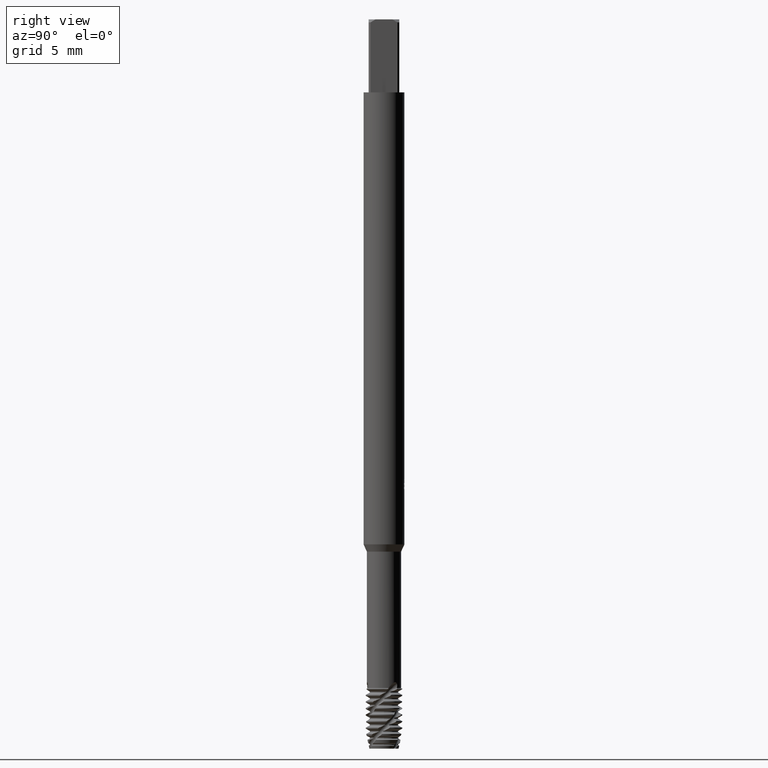
[diagram: clean part render]
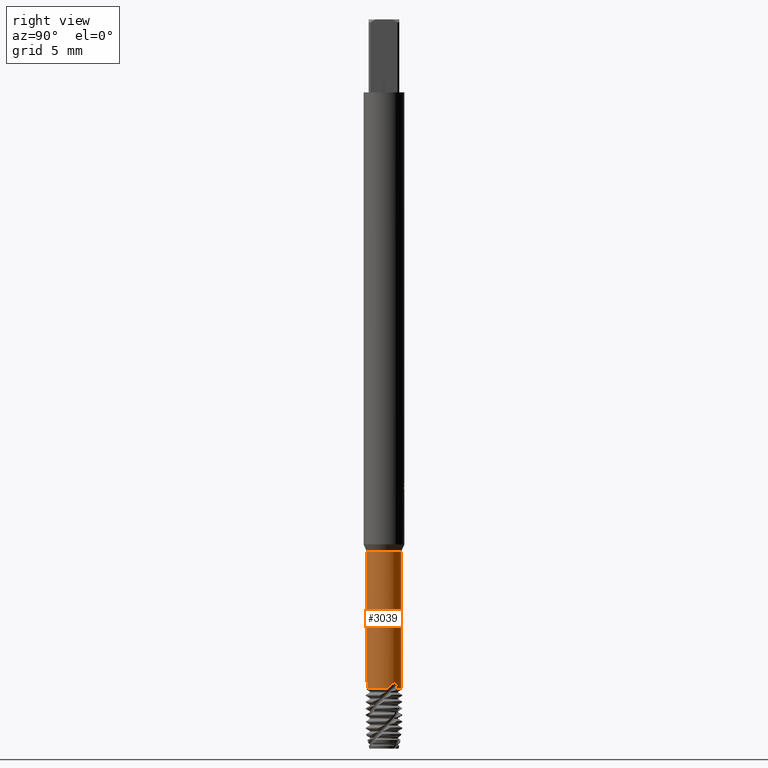
[diagram: same view with one face highlighted and labeled with its STEP entity id]
A machine part, right view. The second image highlights one B-rep face of the part: STEP entity #3039.
In plain terms, the highlighted cylindrical surface (edge-blend (fillet) strip) has radius 1.175 mm, axis along (-0, -0, 1).
Its self-contained STEP definition (entity closure, byte-faithful):
#1549=VERTEX_POINT('',#4412);
#1625=EDGE_CURVE('',#3463,#1673,#4492,.T.);
#1659=EDGE_CURVE('',#2507,#2755,#4531,.T.);
#1673=VERTEX_POINT('',#4545);
#1771=EDGE_CURVE('',#1673,#1549,#4649,.T.);
#1783=EDGE_CURVE('',#2327,#2001,#4663,.T.);
#1945=EDGE_CURVE('',#2507,#2391,#4840,.T.);
#2001=VERTEX_POINT('',#4901);
#2327=VERTEX_POINT('',#5258);
#2391=VERTEX_POINT('',#5329);
#2507=VERTEX_POINT('',#5457);
#2601=EDGE_CURVE('',#2001,#3919,#5557,.T.);
#2755=VERTEX_POINT('',#5720);
#3039=ADVANCED_FACE('',(#6026),#6027,.T.);
#3111=EDGE_CURVE('',#1549,#3919,#6106,.T.);
#3463=VERTEX_POINT('',#6492);
#3731=EDGE_CURVE('',#3463,#2391,#6780,.T.);
#3747=EDGE_CURVE('',#2327,#2755,#6797,.T.);
#3919=VERTEX_POINT('',#6981);
#4412=CARTESIAN_POINT('',(1.047353587431,0.532611925228308,-45.5898162549325));
#4492=B_SPLINE_CURVE_WITH_KNOTS('',3,(#8360,#8361,#8362,#8363),.UNSPECIFIED.,.F.,.F.,(4,4),(0.0,0.120829180290299),.UNSPECIFIED.);
#4531=LINE('',#8465,#8466);
#4545=CARTESIAN_POINT('',(1.11451813874406,0.372121375911766,-45.7623874233645));
#4649=B_SPLINE_CURVE_WITH_KNOTS('',3,(#8951,#8952,#8953,#8954,#8955,#8956,#8957,#8958,#8959,#8960,#8961,#8962,#8963,#8964),.UNSPECIFIED.,.F.,.F.,(4,2,2,2,2,2,4),(0.0,0.073062417340077,0.108764522273171,0.135861946286986,0.16442480648226,0.208150389188533,0.245366890157164),.UNSPECIFIED.);
#4663=LINE('',#8987,#8988);
#4840=B_SPLINE_CURVE_WITH_KNOTS('',3,(#9363,#9364,#9365,#9366,#9367,#9368,#9369,#9370,#9371,#9372,#9373,#9374,#9375,#9376,#9377,#9378,#9379,#9380,#9381,#9382,#9383,#9384),.UNSPECIFIED.,.F.,.F.,(4,2,2,2,2,2,2,2,2,2,4),(0.0,0.0841817871272147,0.156980846909316,0.240447389108906,0.348248711493823,0.444682957240608,0.535374247849396,0.636901902684092,0.762667788423749,0.891661716106928,1.02678632898102),.UNSPECIFIED.);
#4901=CARTESIAN_POINT('',(-1.43891246574129E-016,1.175,-45.8566987298108));
#5258=CARTESIAN_POINT('',(0.0,1.175,-36.49421268));
#5329=CARTESIAN_POINT('',(0.359354003040469,-1.11870000469241,-45.8566987298108));
#5457=CARTESIAN_POINT('',(-1.20216587817484E-009,-1.175,-45.539205110044));
#5557=CIRCLE('',#11818,1.175);
#5720=CARTESIAN_POINT('',(1.43891246574129E-016,-1.175,-36.49421268));
#6026=FACE_OUTER_BOUND('',#13232,.T.);
#6027=CYLINDRICAL_SURFACE('',#13233,1.175);
#6106=B_SPLINE_CURVE_WITH_KNOTS('',3,(#13428,#13429,#13430,#13431,#13432,#13433,#13434,#13435,#13436,#13437,#13438,#13439,#13440,#13441,#13442,#13443,#13444,#13445,#13446,#13447,#13448,#13449),.UNSPECIFIED.,.F.,.F.,(4,2,2,2,2,2,2,2,2,2,4),(0.0,0.0841817871270095,0.156980846908901,0.240447389108452,0.348248711482492,0.444682957208354,0.535374247797508,0.636901902610202,0.762667788322723,0.891661715978036,1.02678632882287),.UNSPECIFIED.);
#6492=CARTESIAN_POINT('',(1.13625974565498,0.299230330020322,-45.8566987298108));
#6780=CIRCLE('',#15966,1.175);
#6797=CIRCLE('',#16009,1.175);
#6981=CARTESIAN_POINT('',(0.78914562175716,0.87055969793088,-45.8566987298108));
#8360=CARTESIAN_POINT('',(1.13625974565498,0.299230330020324,-45.8566987298108));
#8361=CARTESIAN_POINT('',(1.13032123492983,0.32178048623501,-45.8238595396137));
#8362=CARTESIAN_POINT('',(1.12300399622722,0.346705899403337,-45.7924279401098));
#8363=CARTESIAN_POINT('',(1.11451813874406,0.372121375911767,-45.7623874233645));
#8465=CARTESIAN_POINT('',(1.43891246574129E-016,-1.175,-41.1754557049054));
#8466=VECTOR('',#18360,1.0);
#8951=CARTESIAN_POINT('',(1.11451813874407,0.372121375911765,-45.7623874233645));
#8952=CARTESIAN_POINT('',(1.10938410297114,0.387498014729864,-45.7442125850628));
#8953=CARTESIAN_POINT('',(1.10385042642776,0.403017060908933,-45.7263291878754));
#8954=CARTESIAN_POINT('',(1.0949174167896,0.4264370392599,-45.7001187223373));
#8955=CARTESIAN_POINT('',(1.09187900155634,0.434160781540667,-45.691597222726));
#8956=CARTESIAN_POINT('',(1.08633049950597,0.447829839298605,-45.6767356492354));
#8957=CARTESIAN_POINT('',(1.08387240070184,0.453748085420603,-45.6703724263763));
#8958=CARTESIAN_POINT('',(1.07868266434404,0.465956058650517,-45.6573919807135));
#8959=CARTESIAN_POINT('',(1.07594663451269,0.47224101854452,-45.6507876627665));
#8960=CARTESIAN_POINT('',(1.06882468761794,0.488211702407481,-45.6341981767681));
#8961=CARTESIAN_POINT('',(1.06434426225429,0.497908746975725,-45.6243033239712));
#8962=CARTESIAN_POINT('',(1.05569963799301,0.515953398455306,-45.6061934766522));
#8963=CARTESIAN_POINT('',(1.05159534158725,0.524270736790517,-45.5979639127367));
#8964=CARTESIAN_POINT('',(1.047353587431,0.532611925228309,-45.5898162549325));
#8987=CARTESIAN_POINT('',(-1.43891246574129E-016,1.175,-41.1754557049054));
#8988=VECTOR('',#18467,1.0);
#9363=CARTESIAN_POINT('',(-0.0624213361092398,-1.17334077607417,-45.5898162549325));
#9364=CARTESIAN_POINT('',(-0.0412882625215394,-1.1744650485075,-45.5713900170153));
#9365=CARTESIAN_POINT('',(-0.019171134966112,-1.17506204999753,-45.5532689430655));
#9366=CARTESIAN_POINT('',(0.0230796701197636,-1.17493669663887,-45.5222414992643));
#9367=CARTESIAN_POINT('',(0.043556298781691,-1.17438333532977,-45.5086073246523));
#9368=CARTESIAN_POINT('',(0.0889396182934026,-1.17188060109015,-45.4829202607176));
#9369=CARTESIAN_POINT('',(0.114520339778763,-1.16970964446998,-45.4711255898574));
#9370=CARTESIAN_POINT('',(0.175163413476366,-1.16238034571493,-45.4525400276971));
#9371=CARTESIAN_POINT('',(0.205216788232979,-1.15724589331639,-45.4499229865993));
#9372=CARTESIAN_POINT('',(0.254606036011483,-1.14733016986861,-45.4543946715206));
#9373=CARTESIAN_POINT('',(0.276884980590132,-1.14210814729991,-45.4606983043219));
#9374=CARTESIAN_POINT('',(0.316765437939759,-1.1316730165745,-45.4816701549037));
#9375=CARTESIAN_POINT('',(0.333753880191169,-1.12670315841001,-45.4954006828259));
#9376=CARTESIAN_POINT('',(0.364230488834712,-1.11724894816653,-45.5306140335427));
#9377=CARTESIAN_POINT('',(0.376587952902308,-1.11305644562499,-45.552260466532));
#9378=CARTESIAN_POINT('',(0.396442449943476,-1.10616166434668,-45.604502264913));
#9379=CARTESIAN_POINT('',(0.40192139869954,-1.10412196031456,-45.635501079484));
#9380=CARTESIAN_POINT('',(0.403929803159219,-1.10338881905806,-45.6988351621723));
#9381=CARTESIAN_POINT('',(0.400230337721583,-1.10476276209008,-45.7309457337352));
#9382=CARTESIAN_POINT('',(0.385272914665653,-1.11007013826169,-45.7948963594831));
#9383=CARTESIAN_POINT('',(0.37371292831058,-1.11408756413325,-45.8264695246299));
#9384=CARTESIAN_POINT('',(0.359354003040469,-1.11870000469241,-45.8566987298108));
#11818=AXIS2_PLACEMENT_3D('',#19480,#19481,#19482);
#13232=EDGE_LOOP('',(#19874,#19875,#19876,#19877,#19878,#19879,#19880,#19881,#19882));
#13233=AXIS2_PLACEMENT_3D('',#19883,#19884,#19885);
#13428=CARTESIAN_POINT('',(1.047353587431,0.532611925228309,-45.5898162549325));
#13429=CARTESIAN_POINT('',(1.03776069912521,0.551475840031921,-45.5713900170154));
#13430=CARTESIAN_POINT('',(1.02721915380395,0.570928335098706,-45.5532689430655));
#13431=CARTESIAN_POINT('',(1.00598519206795,0.607455928954115,-45.5222414992643));
#13432=CARTESIAN_POINT('',(0.995267652785833,0.624912528904649,-45.5086073246523));
#13433=CARTESIAN_POINT('',(0.970408561599524,0.662964269390094,-45.4829202607176));
#13434=CARTESIAN_POINT('',(0.955738097273281,0.684032345733434,-45.4711255898574));
#13435=CARTESIAN_POINT('',(0.919069201512785,0.732886138738795,-45.4525400276982));
#13436=CARTESIAN_POINT('',(0.899595947922805,0.756345898548642,-45.449922986599));
#13437=CARTESIAN_POINT('',(0.86631405562876,0.794160380077135,-45.4543946715206));
#13438=CARTESIAN_POINT('',(0.850652179135827,0.810843500767378,-45.4606983043219));
#13439=CARTESIAN_POINT('',(0.821674862161015,0.840163424583972,-45.4816701549037));
#13440=CARTESIAN_POINT('',(0.808876617611664,0.852390918062176,-45.4954006828258));
#13441=CARTESIAN_POINT('',(0.785450727046296,0.874057330246952,-45.5306140335427));
#13442=CARTESIAN_POINT('',(0.775641181306097,0.882662956785076,-45.552260466532));
#13443=CARTESIAN_POINT('',(0.759742877044971,0.89641006496293,-45.604502264913));
#13444=CARTESIAN_POINT('',(0.755236967158914,0.900135121755653,-45.635501079484));
#13445=CARTESIAN_POINT('',(0.753597845976382,0.901507880410561,-45.6988351621723));
#13446=CARTESIAN_POINT('',(0.756637448264282,0.898991020877159,-45.7309457337352));
#13447=CARTESIAN_POINT('',(0.768712482384293,0.888691200621377,-45.7948963594831));
#13448=CARTESIAN_POINT('',(0.777971668424409,0.880688671706277,-45.8264695246299));
#13449=CARTESIAN_POINT('',(0.789145621757156,0.870559697930883,-45.8566987298108));
#15966=AXIS2_PLACEMENT_3D('',#20620,#20621,#20622);
#16009=AXIS2_PLACEMENT_3D('',#20634,#20635,#20636);
#18360=DIRECTION('',(-0.0,-0.0,1.0));
#18467=DIRECTION('',(0.0,0.0,-1.0));
#19480=CARTESIAN_POINT('',(0.0,0.0,-45.8566987298108));
#19481=DIRECTION('',(0.0,0.0,-1.0));
#19482=DIRECTION('',(0.0,1.0,0.0));
#19874=ORIENTED_EDGE('',*,*,#1783,.F.);
#19875=ORIENTED_EDGE('',*,*,#3747,.T.);
#19876=ORIENTED_EDGE('',*,*,#1659,.F.);
#19877=ORIENTED_EDGE('',*,*,#1945,.T.);
#19878=ORIENTED_EDGE('',*,*,#3731,.F.);
#19879=ORIENTED_EDGE('',*,*,#1625,.T.);
#19880=ORIENTED_EDGE('',*,*,#1771,.T.);
#19881=ORIENTED_EDGE('',*,*,#3111,.T.);
#19882=ORIENTED_EDGE('',*,*,#2601,.F.);
#19883=CARTESIAN_POINT('',(0.0,0.0,-41.1754557049054));
#19884=DIRECTION('',(-0.0,-0.0,1.0));
#19885=DIRECTION('',(0.0,1.0,0.0));
#20620=CARTESIAN_POINT('',(0.0,0.0,-45.8566987298108));
#20621=DIRECTION('',(0.0,0.0,-1.0));
#20622=DIRECTION('',(0.0,1.0,0.0));
#20634=CARTESIAN_POINT('',(0.0,0.0,-36.49421268));
#20635=DIRECTION('',(0.0,0.0,-1.0));
#20636=DIRECTION('',(0.0,1.0,0.0));